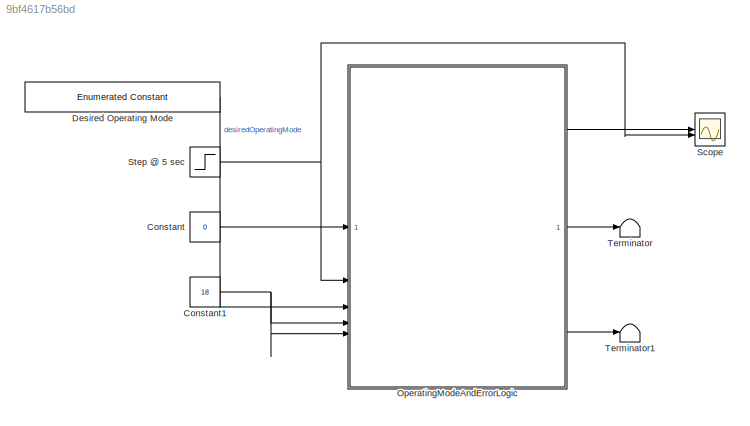
MODEL slx_9bf4617b56bd
KIND model
CONFIG AbsTol = auto
CONFIG EnableMultiTasking = on
CONFIG FixedStep = ts100ms
CONFIG MaxStep = auto
CONFIG MinStep = auto
CONFIG RelTol = 1e-3
CONFIG SampleTimeConstraint = Unconstrained
CONFIG SolverName = FixedStepAuto
CONFIG StartTime = 0.0
CONFIG StopTime = 10
WORKSPACE source: mxarray member
WORKSPACE TsModel = 0.1
BLOCK [Constant] Constant
  OutDataTypeStr = boolean
  Value = 0
BLOCK [Constant] Constant1
  Value = 18
BLOCK [Reference] Desired Operating Mode  REF=simulink/Sources/Enumerated
Constant
  SourceBlock = simulink/Sources/Enumerated\nConstant
  SourceType = Enumerated Constant
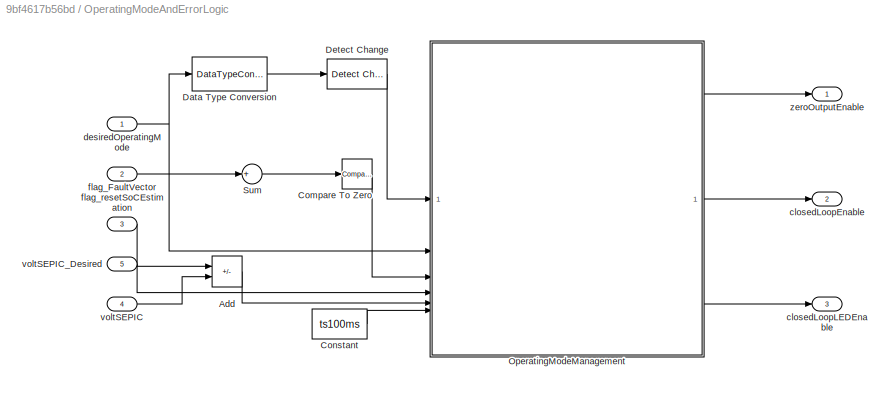
BLOCK [SubSystem] OperatingModeAndErrorLogic
BLOCK [Sum] OperatingModeAndErrorLogic/Add
  IconShape = rectangular
  Inputs = +-
BLOCK [Reference] OperatingModeAndErrorLogic/Compare To Zero  REF=simulink/Logic and Bit
Operations/Compare
To Zero
  SourceBlock = simulink/Logic and Bit\nOperations/Compare\nTo Zero
  SourceType = Compare To Zero
BLOCK [Constant] OperatingModeAndErrorLogic/Constant
  OutDataTypeStr = single
  Value = ts100ms
BLOCK [DataTypeConversion] OperatingModeAndErrorLogic/Data Type Conversion
  OutDataTypeStr = uint16
  RndMeth = Floor
  SaturateOnIntegerOverflow = off
BLOCK [Reference] OperatingModeAndErrorLogic/Detect Change  REF=simulink/Logic and Bit
Operations/Detect
Change
  SourceBlock = simulink/Logic and Bit\nOperations/Detect\nChange
  SourceType = Detect Change
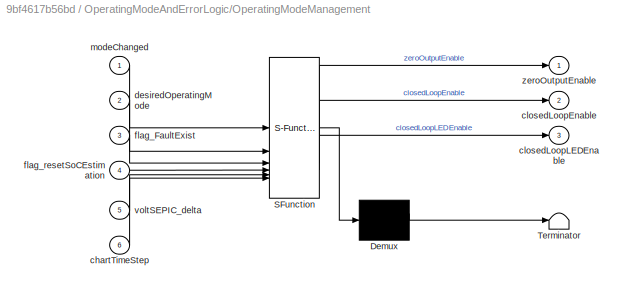
BLOCK [SubSystem] OperatingModeAndErrorLogic/OperatingModeManagement
  ErrorFcn = Stateflow.Translate.translate
  PermitHierarchicalResolution = ExplicitOnly
  SFBlockType = Chart
  TreatAsAtomicUnit = on
BLOCK [Demux] OperatingModeAndErrorLogic/OperatingModeManagement/ Demux 
  Outputs = 1
BLOCK [S-Function] OperatingModeAndErrorLogic/OperatingModeManagement/ SFunction 
  EnableBusSupport = on
  FunctionName = sf_sfun
  PortCounts = [6 4]
  SFcnIsStateOwnerBlock = off
  SFunctionDeploymentMode = off
  Tag = Stateflow S-Function 1
BLOCK [Terminator] OperatingModeAndErrorLogic/OperatingModeManagement/ Terminator 
BLOCK [Inport] OperatingModeAndErrorLogic/OperatingModeManagement/chartTimeStep
  Port = 6
BLOCK [Outport] OperatingModeAndErrorLogic/OperatingModeManagement/closedLoopEnable
  Port = 2
BLOCK [Outport] OperatingModeAndErrorLogic/OperatingModeManagement/closedLoopLEDEnable
  Port = 3
BLOCK [Inport] OperatingModeAndErrorLogic/OperatingModeManagement/desiredOperatingMode
  Port = 2
BLOCK [Inport] OperatingModeAndErrorLogic/OperatingModeManagement/flag_FaultExist
  Port = 3
BLOCK [Inport] OperatingModeAndErrorLogic/OperatingModeManagement/flag_resetSoCEstimation
  Port = 4
BLOCK [Inport] OperatingModeAndErrorLogic/OperatingModeManagement/modeChanged
BLOCK [Inport] OperatingModeAndErrorLogic/OperatingModeManagement/voltSEPIC_delta
  Port = 5
BLOCK [Outport] OperatingModeAndErrorLogic/OperatingModeManagement/zeroOutputEnable
BLOCK [Sum] OperatingModeAndErrorLogic/Sum
  Inputs = +
BLOCK [Outport] OperatingModeAndErrorLogic/closedLoopEnable
  OutDataTypeStr = boolean
  Port = 2
  PortDimensions = 1
  SamplingMode = Sample based
  SignalType = real
  Unit = 1
BLOCK [Outport] OperatingModeAndErrorLogic/closedLoopLEDEnable
  OutDataTypeStr = boolean
  Port = 3
  PortDimensions = 1
  SamplingMode = Sample based
  SignalType = real
  Unit = 1
BLOCK [Inport] OperatingModeAndErrorLogic/desiredOperatingMode
BLOCK [Inport] OperatingModeAndErrorLogic/flag_FaultVector
  Port = 2
BLOCK [Inport] OperatingModeAndErrorLogic/flag_resetSoCEstimation
  Port = 3
BLOCK [Inport] OperatingModeAndErrorLogic/voltSEPIC
  Port = 4
BLOCK [Inport] OperatingModeAndErrorLogic/voltSEPIC_Desired
  Port = 5
BLOCK [Outport] OperatingModeAndErrorLogic/zeroOutputEnable
  OutDataTypeStr = boolean
  PortDimensions = 1
  SamplingMode = Sample based
  SignalType = real
  Unit = 1
BLOCK [Scope] Scope
  Floating = off
  NumInputPorts = 2
  ScopeSpecificationString = Simulink.scopes.TimeScopeBlockCfg('CurrentConfiguration', extmgr.ConfigurationSet(extmgr.Configuration('Core','General UI',true),extmgr.Configuration('Core','Source UI',true),extmgr.Configuration('Sources','WiredSimulink',true),extmgr.Configuration('Visuals','Time Domain',true,'SerializedDisplays',{struct('MinYLimReal','-0.125','MaxYLimReal','1.125','YLabelReal','','MinYLimMag','0.00000','MaxYLimM...<+1308ch>
BLOCK [Step] Step @ 5 sec
  After = 0
  Before = 1
  SampleTime = 0
  Time = 5
BLOCK [Terminator] Terminator
BLOCK [Terminator] Terminator1
NET Constant1:1 -> OperatingModeAndErrorLogic:4, OperatingModeAndErrorLogic:5
LINE Constant:1 -> OperatingModeAndErrorLogic:3
LINE Desired Operating Mode:1 -> OperatingModeAndErrorLogic:1
LINE OperatingModeAndErrorLogic/Add:1 -> OperatingModeAndErrorLogic/OperatingModeManagement:5
LINE OperatingModeAndErrorLogic/Compare To Zero:1 -> OperatingModeAndErrorLogic/OperatingModeManagement:3
LINE OperatingModeAndErrorLogic/Constant:1 -> OperatingModeAndErrorLogic/OperatingModeManagement:6
LINE OperatingModeAndErrorLogic/Data Type Conversion:1 -> OperatingModeAndErrorLogic/Detect Change:1
LINE OperatingModeAndErrorLogic/Detect Change:1 -> OperatingModeAndErrorLogic/OperatingModeManagement:1
LINE OperatingModeAndErrorLogic/OperatingModeManagement:1 -> OperatingModeAndErrorLogic/zeroOutputEnable:1
LINE OperatingModeAndErrorLogic/OperatingModeManagement:2 -> OperatingModeAndErrorLogic/closedLoopEnable:1
LINE OperatingModeAndErrorLogic/OperatingModeManagement:3 -> OperatingModeAndErrorLogic/closedLoopLEDEnable:1
LINE OperatingModeAndErrorLogic/Sum:1 -> OperatingModeAndErrorLogic/Compare To Zero:1
NET OperatingModeAndErrorLogic/desiredOperatingMode:1 -> OperatingModeAndErrorLogic/Data Type Conversion:1, OperatingModeAndErrorLogic/OperatingModeManagement:2
LINE OperatingModeAndErrorLogic/flag_FaultVector:1 -> OperatingModeAndErrorLogic/Sum:1
LINE OperatingModeAndErrorLogic/flag_resetSoCEstimation:1 -> OperatingModeAndErrorLogic/OperatingModeManagement:4
LINE OperatingModeAndErrorLogic/voltSEPIC:1 -> OperatingModeAndErrorLogic/Add:2
LINE OperatingModeAndErrorLogic/voltSEPIC_Desired:1 -> OperatingModeAndErrorLogic/Add:1
LINE OperatingModeAndErrorLogic:1 -> Scope:1
LINE OperatingModeAndErrorLogic:2 -> Terminator:1
LINE OperatingModeAndErrorLogic:3 -> Terminator1:1
NET Step @ 5 sec:1 -> OperatingModeAndErrorLogic:2, Scope:2
note: NET lines group one-source signal fan-out (src -> all destinations, sorted); 1:1 wires keep LINE
CHART Test Sequence states=13 transitions=13
  STATE_LABEL 'step_1\nflag_resetSoCEstimation=true;\ndesiredOperatingMode = AllClosedLoop;\nflag_FaultVector =[false false false];'
  STATE_LABEL 'verifyStep1\nverify(zeroOutputEnable ==true)'
  STATE_LABEL 'step_2\nflag_resetSoCEstimation=false;'
  STATE_LABEL 'step_2_1\ndesiredOperatingMode =AllOpenLoop;'
  STATE_LABEL 'verifyStep2_1\nverify((closedLoopEnable && closedLoopLEDEnable) == false )\nverify(zeroOutputEnable==false)'
  STATE_LABEL 'step_2_2\ndesiredOperatingMode =VoltClosed_CurrOpen;'
  STATE_LABEL 'verifyStep2_2\nverify(closedLoopEnable==true &&closedLoopLEDEnable==false)\nverify(zeroOutputEnable==false)'
  STATE_LABEL 'step_2_3\ndesiredOperatingMode =VoltOpen_CurrClosed;'
  STATE_LABEL 'verifyStep2_3\nverify(closedLoopEnable==false &&closedLoopLEDEnable == true)\nverify(zeroOutputEnable==false)'
  STATE_LABEL 'step_2_4\ndesiredOperatingMode =AllClosedLoop;'
  STATE_LABEL 'verifyStep2_4\nverify(closedLoopEnable&&closedLoopLEDEnable == true)\nverify(zeroOutputEnable==false)'
  STATE_LABEL 'step_3\n\nflag_FaultVector =[true true true];\n'
  STATE_LABEL 'verifyStep3\nverify(zeroOutputEnable==true)'
CHART OperatingModeAndErrorLogic/OperatingModeManagement states=14 transitions=24
  STATE_LABEL 'Operation\n'
  STATE_LABEL 'OperatingMode'
  STATE_LABEL 'AllOpenLoop\nen:closedLoopEnable=false;\nen:closedLoopLEDEnable=false;'
  STATE_LABEL 'VoltOpen_CurrClosed\nen:closedLoopEnable=false;\nen:closedLoopLEDEnable=true;'
  STATE_LABEL 'VoltClosed_CurrOpen\nen:closedLoopEnable=true;\nen:closedLoopLEDEnable=false;'
  STATE_LABEL 'AllClosedLoop\nen:closedLoopEnable=true;\nen:closedLoopLEDEnable=true;'
  STATE_LABEL 'AutomaticOperation\n'
  STATE_LABEL 'AllOpenLoop\nen:closedLoopEnable=false;\nen:closedLoopLEDEnable=false;\nen:counter=0;'
  STATE_LABEL 'WaitingForVoltageSettling\nen:closedLoopEnable=false;\nen:closedLoopLEDEnable=false;\ndu:counter=counter+1;\n'
  STATE_LABEL 'AllClosedLoop\nen:closedLoopEnable=true;\nen:closedLoopLEDEnable=true;'
  STATE_LABEL '[abs(voltSEPIC_delta) <=1]'
  STATE_LABEL '[abs(voltSEPIC_delta) >1.5]'
  STATE_LABEL '[counter>floor(2/chartTimeStep)]'
  STATE_LABEL 'NoOutput\nen:zeroOutputEnable=true;'
  STATE_LABEL '[desiredOperatingMode==AllOpenLoop]'
  STATE_LABEL '[modeChanged]'
  STATE_LABEL '[desiredOperatingMode==VoltOpen_CurrClosed]'
  STATE_LABEL '[modeChanged]'
  STATE_LABEL '[modeChanged]'
  STATE_LABEL '[desiredOperatingMode==VoltClosed_CurrOpen]'
  STATE_LABEL '[desiredOperatingMode==AllClosedLoop]'
  STATE_LABEL '[modeChanged]'
  STATE_LABEL '[desiredOperatingMode==AutomaticOperation]'
  STATE_LABEL '[modeChanged]'
  STATE_LABEL '[modeChanged]'
  STATE_LABEL 'CheckingFault'
  STATE_LABEL 'SystemKO\nen:zeroOutputEnable=true;'
  STATE_LABEL 'OperatingMode'
  STATE_LABEL 'AllOpenLoop\nen:closedLoopEnable=false;\nen:closedLoopLEDEnable=false;'
  STATE_LABEL 'VoltOpen_CurrClosed\nen:closedLoopEnable=false;\nen:closedLoopLEDEnable=true;'
  STATE_LABEL 'VoltClosed_CurrOpen\nen:closedLoopEnable=true;\nen:closedLoopLEDEnable=false;'
  STATE_LABEL 'AllClosedLoop\nen:closedLoopEnable=true;\nen:closedLoopLEDEnable=true;'
  STATE_LABEL 'AutomaticOperation\n'
  STATE_LABEL 'AllOpenLoop\nen:closedLoopEnable=false;\nen:closedLoopLEDEnable=false;\nen:counter=0;'
  STATE_LABEL 'WaitingForVoltageSettling\nen:closedLoopEnable=false;\nen:closedLoopLEDEnable=false;\ndu:counter=counter+1;\n'
  STATE_LABEL 'AllClosedLoop\nen:closedLoopEnable=true;\nen:closedLoopLEDEnable=true;'
  STATE_LABEL '[abs(voltSEPIC_delta) <=1]'
  STATE_LABEL '[abs(voltSEPIC_delta) >1.5]'
  STATE_LABEL '[counter>floor(2/chartTimeStep)]'
  STATE_LABEL 'NoOutput\nen:zeroOutputEnable=true;'
CHART  states=0 transitions=0
